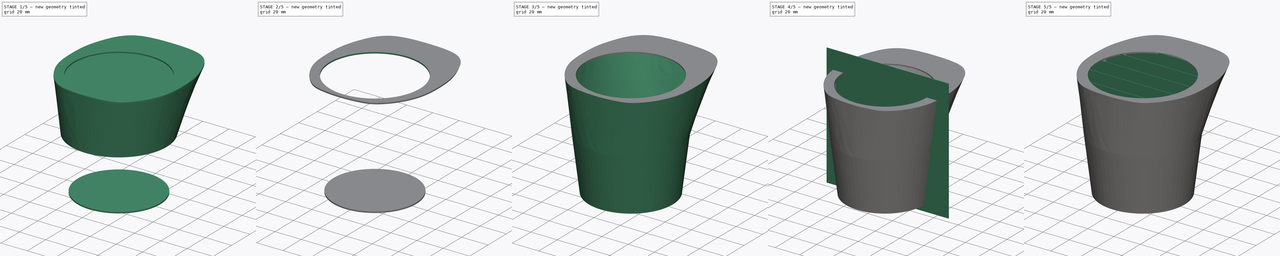
[diagram: build sequence overview — one tinted view per stage of 5, left to right]
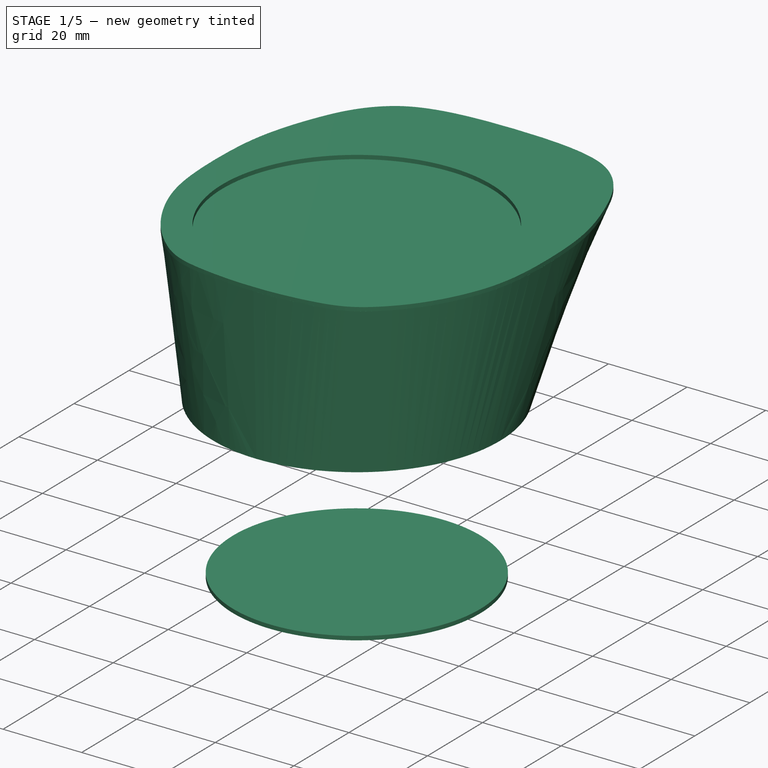
[diagram: stage 1 of 5 — iso view after this stage's code; geometry added in this stage tinted green]
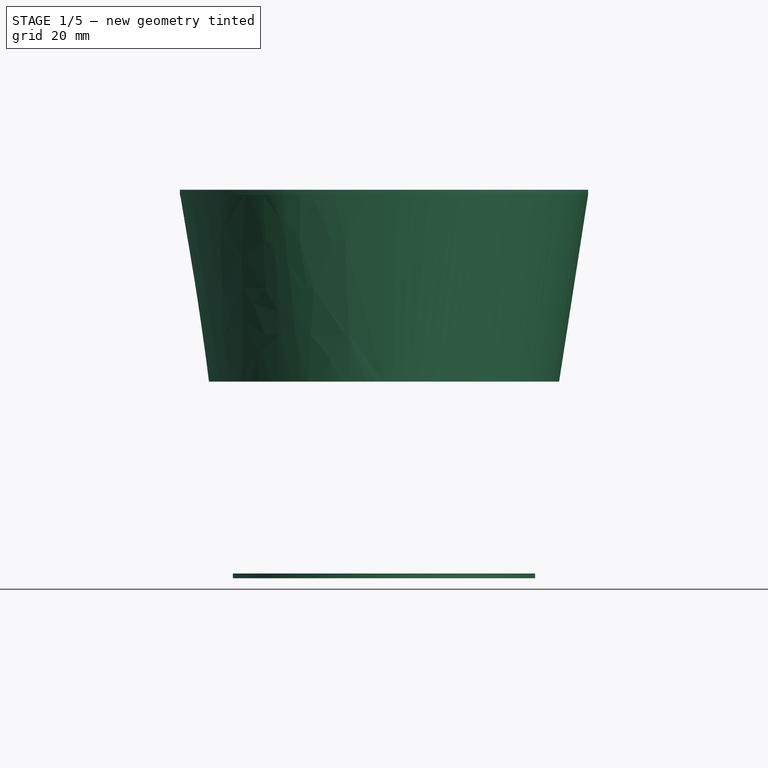
[diagram: stage 1 of 5 — front view after this stage's code; geometry added in this stage tinted green]
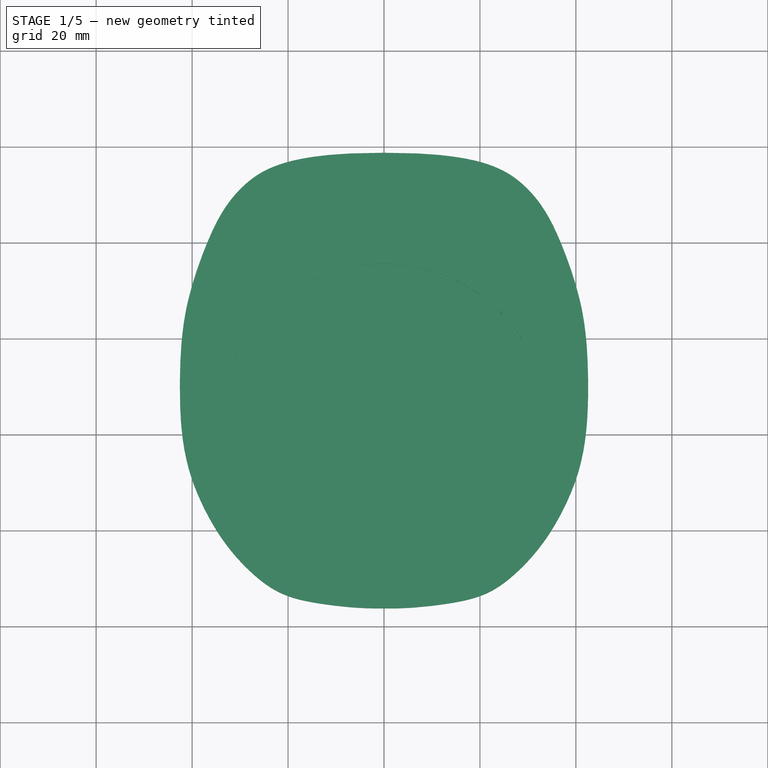
[diagram: stage 1 of 5 — top view after this stage's code; geometry added in this stage tinted green]
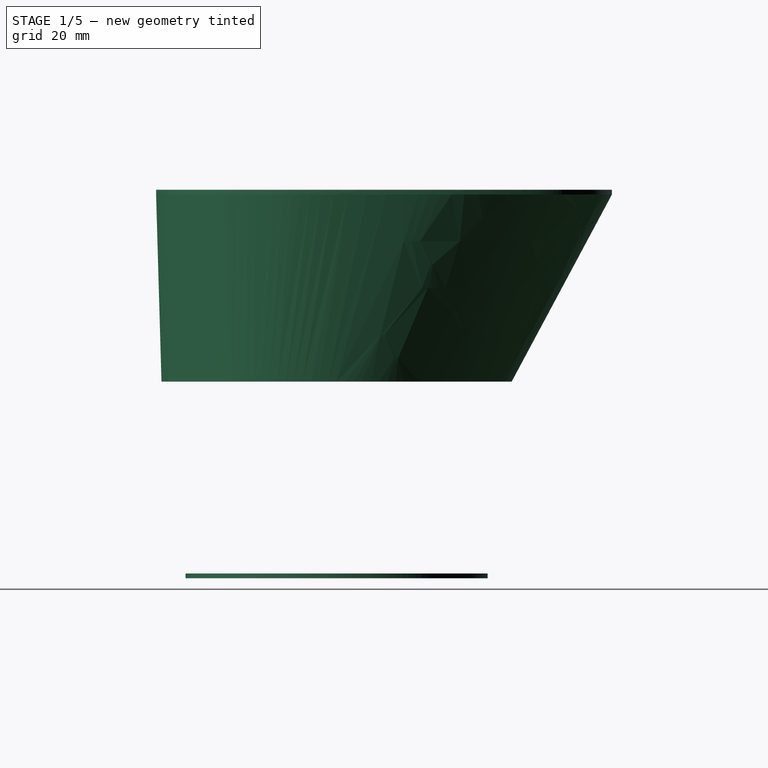
[diagram: stage 1 of 5 — right view after this stage's code; geometry added in this stage tinted green]
FCSTD DOCUMENT  (FreeCAD 0.21R33694 (Git))
Label: nodr
License: All rights reserved
LicenseURL: http://en.wikipedia.org/wiki/All_rights_reserved
objects: Sketcher::SketchObject×11, PartDesign::Body×6, Part::MultiFuse×5, PartDesign::AdditiveLoft×4, Image::ImagePlane×3, PartDesign::Thickness×2, Part::MultiCommon×2, PartDesign::Pad×2, Part::Box×1, Part::FeaturePython×1, PartDesign::Pocket×1
note: 43 computed .brp shape members not serialized (recipe doc carries the construction recipe); baked Part::Feature solids carry a one-line shape summary decoded from their .brp

FEATURE [PartDesign::Body] Body002
  Group = -> [Sketch006,Sketch007,AdditiveLoft002]
  Origin = -> Origin002
  Tip = -> AdditiveLoft002
FEATURE [Sketcher::SketchObject] Sketch008
  AttachmentOffset = pos=(0,0,41) rot=(0,0,1;0rad)
  FullyConstrained = true
  MapMode = 5
  Placement = pos=(0,0,41) rot=(0,0,1;0rad)
  Support = -> [XY_Plane003]
  sketch-geometry (1):
    g0: Circle CenterX=0 CenterY=0 CenterZ=0 NormalX=0 NormalY=0 NormalZ=1 AngleXU=0 Radius=36.5
  constraints (2):
    c: Coincident(g0,g-1)
    c: Diameter(g0) = 73
FEATURE [Sketcher::SketchObject] Sketch009
  AttachmentOffset = pos=(0,0,80) rot=(0,0,1;0rad)
  FullyConstrained = false
  MapMode = 5
  Placement = pos=(0,0,80) rot=(0,0,1;0rad)
  Support = -> [XY_Plane003]
  sketch-geometry (28):
    g0-g13: Circle x14 (B-spline internal-alignment scaffolding for g14; pole/knot coordinates omitted)
    g14: BSplineCurve PolesCount=14 KnotsCount=12 Degree=3 IsPeriodic=0
    g15-g26: GeomPoint x12 (B-spline internal-alignment scaffolding for g14; pole/knot coordinates omitted)
    g27: BSplineCurve PolesCount=14 KnotsCount=12 Degree=3 IsPeriodic=0
  constraints (6):
    c: Weight(g0) = 1
    c: PointOnObject(g14,g-2)
    c: Equal(g0, g1-g13) x13
    c: PointOnObject(g14,g-2)
    c: InternalAlignment(g0-g13 -> g14) x14
    c: InternalAlignment(g15-g26 -> g14) x12
FEATURE [PartDesign::AdditiveLoft] AdditiveLoft003
  Closed = false
  Profile = -> Sketch008
  Ruled = false
  Sections = -> [Sketch009]
FEATURE [Sketcher::SketchObject] Sketch010
  AttachmentOffset = pos=(0,0,80) rot=(0,0,1;0rad)
  FullyConstrained = false
  MapMode = 5
  Placement = pos=(0,0,80) rot=(0,0,1;0rad)
  Support = -> [XY_Plane004]
  sketch-geometry (28):
    g0-g13: Circle x14 (B-spline internal-alignment scaffolding for g14; pole/knot coordinates omitted)
    g14: BSplineCurve PolesCount=14 KnotsCount=12 Degree=3 IsPeriodic=0
    g15-g26: GeomPoint x12 (B-spline internal-alignment scaffolding for g14; pole/knot coordinates omitted)
    g27: BSplineCurve PolesCount=14 KnotsCount=12 Degree=3 IsPeriodic=0
  constraints (6):
    c: Weight(g0) = 1
    c: PointOnObject(g14,g-2)
    c: Equal(g0, g1-g13) x13
    c: PointOnObject(g14,g-2)
    c: InternalAlignment(g0-g13 -> g14) x14
    c: InternalAlignment(g15-g26 -> g14) x12
FEATURE [PartDesign::Pad] Pad
  Direction = (0,0,1)
  Length = 1
  Length2 = 10
  Profile = -> Sketch010
  ReferenceAxis = -> Sketch010 [N_Axis]
  Type = 0
FEATURE [Sketcher::SketchObject] Sketch011
  FullyConstrained = false
  MapMode = 5
  Placement = pos=(0,0,81) rot=(0,0,1;0rad)
  Support = -> [Pad]
  sketch-geometry (1):
    g0: Circle CenterX=0 CenterY=0 CenterZ=0 NormalX=0 NormalY=0 NormalZ=1 AngleXU=0 Radius=34.2551
  constraints (1):
    c: Coincident(g0,g-1)
FEATURE [PartDesign::Pocket] Pocket
  BaseFeature = -> Pad
  Direction = (0,0,-1)
  Length = 5
  Length2 = 5
  Profile = -> Sketch011
  ReferenceAxis = -> Sketch011 [N_Axis]
  Type = 0
FEATURE [Sketcher::SketchObject] Sketch012
  FullyConstrained = true
  MapMode = 5
  Support = -> [XY_Plane005]
  sketch-geometry (1):
    g0: Circle CenterX=0 CenterY=0 CenterZ=0 NormalX=0 NormalY=0 NormalZ=1 AngleXU=0 Radius=31.5
  constraints (2):
    c: Coincident(g0,g-1)
    c: Diameter(g0) = 63
FEATURE [PartDesign::Pad] Pad001
  Direction = (0,0,1)
  Length = 1
  Length2 = 10
  Profile = -> Sketch012
  ReferenceAxis = -> Sketch012 [N_Axis]
  Type = 0
  UseCustomVector = true
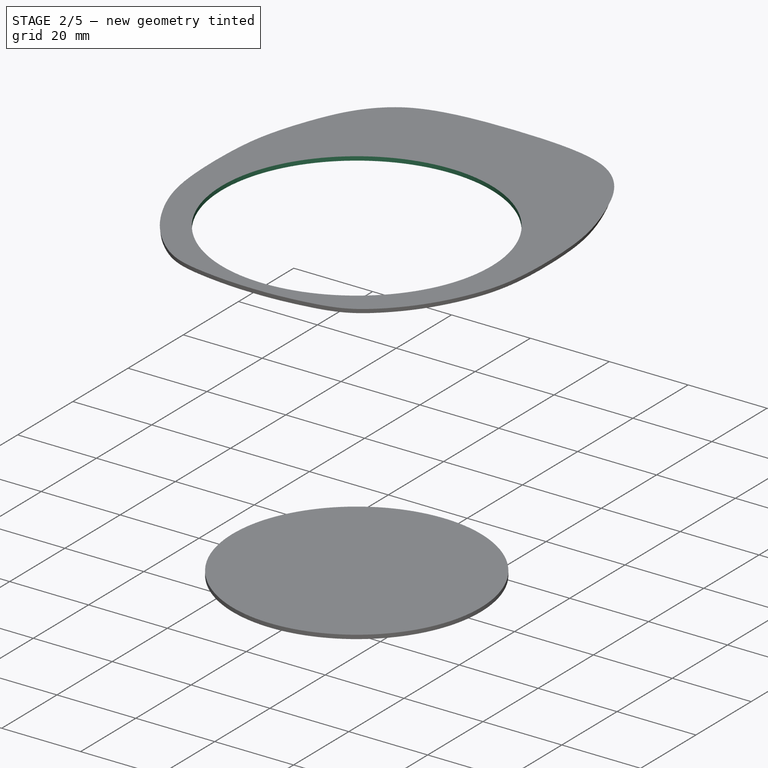
[diagram: stage 2 of 5 — iso view after this stage's code; geometry added in this stage tinted green]
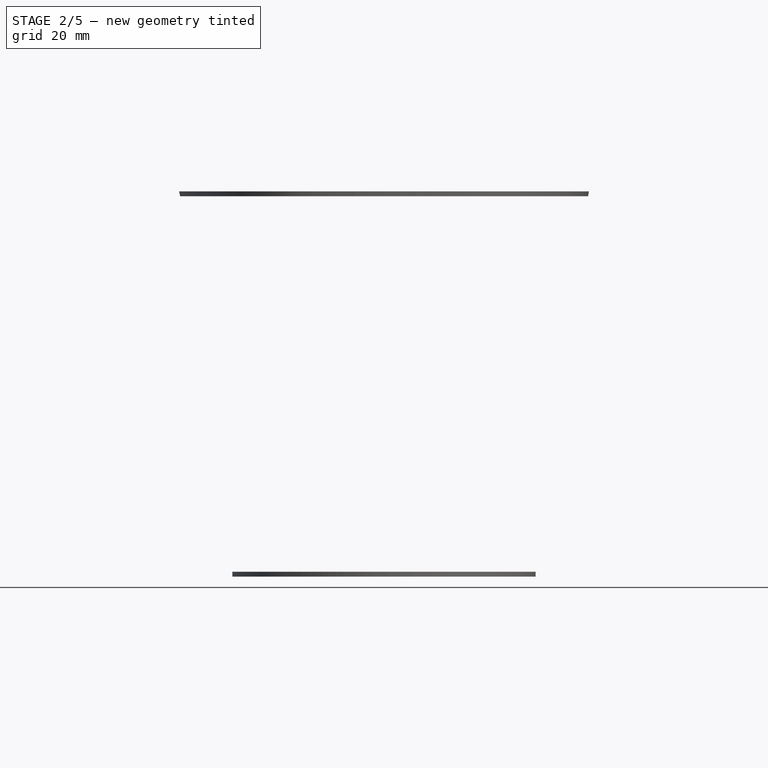
[diagram: stage 2 of 5 — front view after this stage's code; geometry added in this stage tinted green]
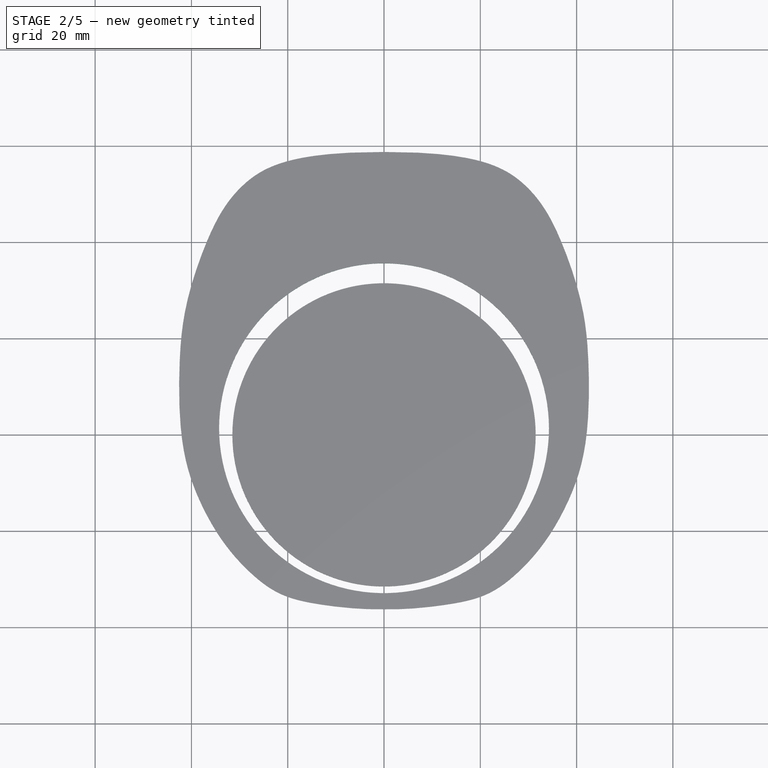
[diagram: stage 2 of 5 — top view after this stage's code; geometry added in this stage tinted green]
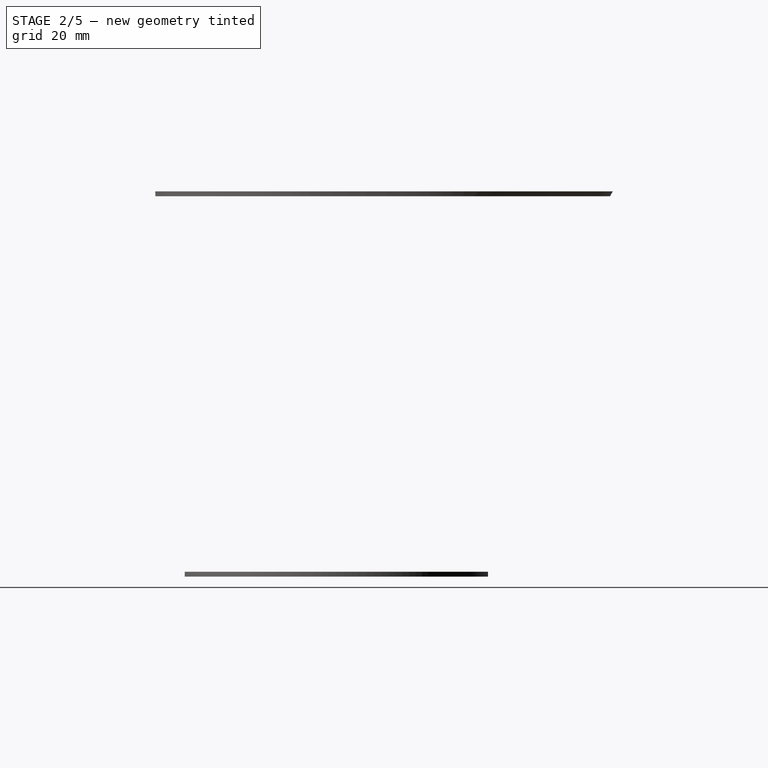
[diagram: stage 2 of 5 — right view after this stage's code; geometry added in this stage tinted green]
FEATURE [Sketcher::SketchObject] Sketch006
  FullyConstrained = true
  MapMode = 5
  Support = -> [XY_Plane002]
  sketch-geometry (1):
    g0: Circle CenterX=0 CenterY=0 CenterZ=0 NormalX=0 NormalY=0 NormalZ=1 AngleXU=0 Radius=31.5
  constraints (2):
    c: Coincident(g0,g-1)
    c: Diameter(g0) = 63
FEATURE [Sketcher::SketchObject] Sketch007
  AttachmentOffset = pos=(0,0,41) rot=(0,0,1;0rad)
  FullyConstrained = true
  MapMode = 5
  Placement = pos=(0,0,41) rot=(0,0,1;0rad)
  Support = -> [XY_Plane002]
  sketch-geometry (1):
    g0: Circle CenterX=0 CenterY=0 CenterZ=0 NormalX=0 NormalY=0 NormalZ=1 AngleXU=0 Radius=36.5
  constraints (2):
    c: Coincident(g0,g-1)
    c: Diameter(g0) = 73
FEATURE [PartDesign::AdditiveLoft] AdditiveLoft002
  Closed = false
  Profile = -> Sketch006
  Ruled = false
  Sections = -> [Sketch007]
FEATURE [Part::MultiFuse] Fusion001
  Shapes = -> [Body003,Body002]
FEATURE [PartDesign::Body] Body004
  Group = -> [Sketch010,Pad,Sketch011,Pocket]
  Origin = -> Origin004
  Placement = pos=(0,0,-1) rot=(0,0,1;0rad)
  Tip = -> Pocket
FEATURE [Part::MultiCommon] Common001
  Shapes = -> [Fusion001,Body004]
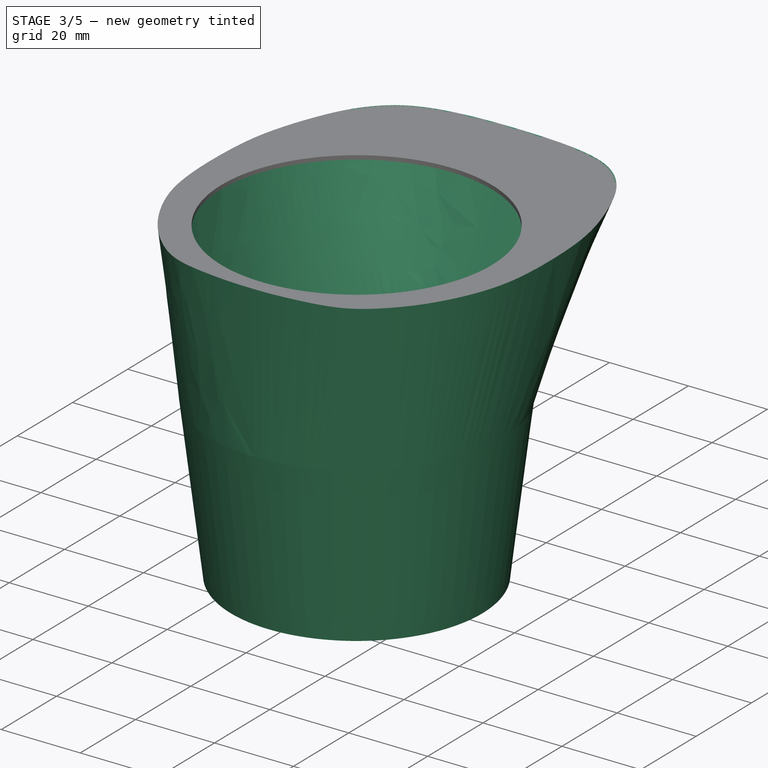
[diagram: stage 3 of 5 — iso view after this stage's code; geometry added in this stage tinted green]
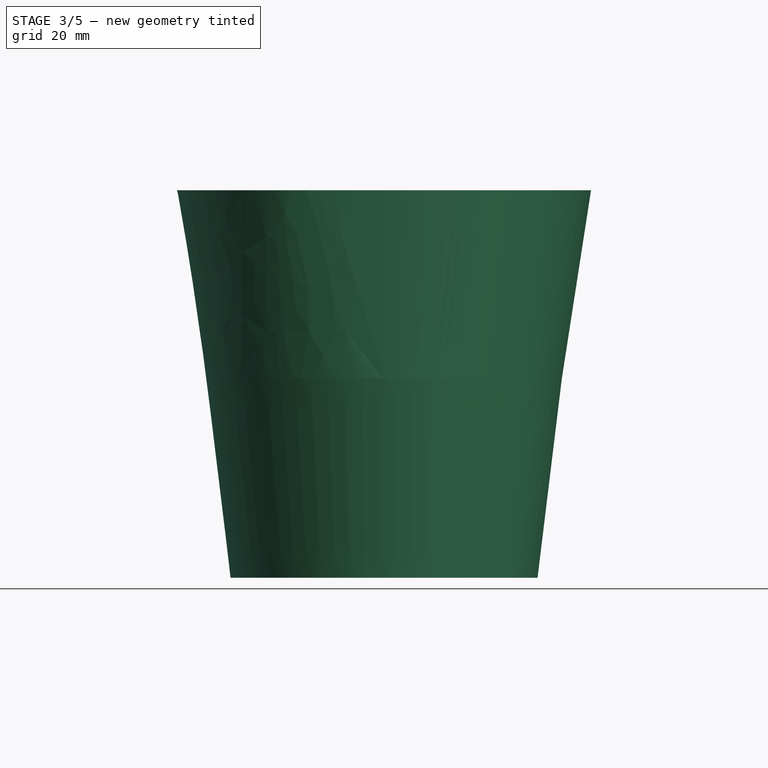
[diagram: stage 3 of 5 — front view after this stage's code; geometry added in this stage tinted green]
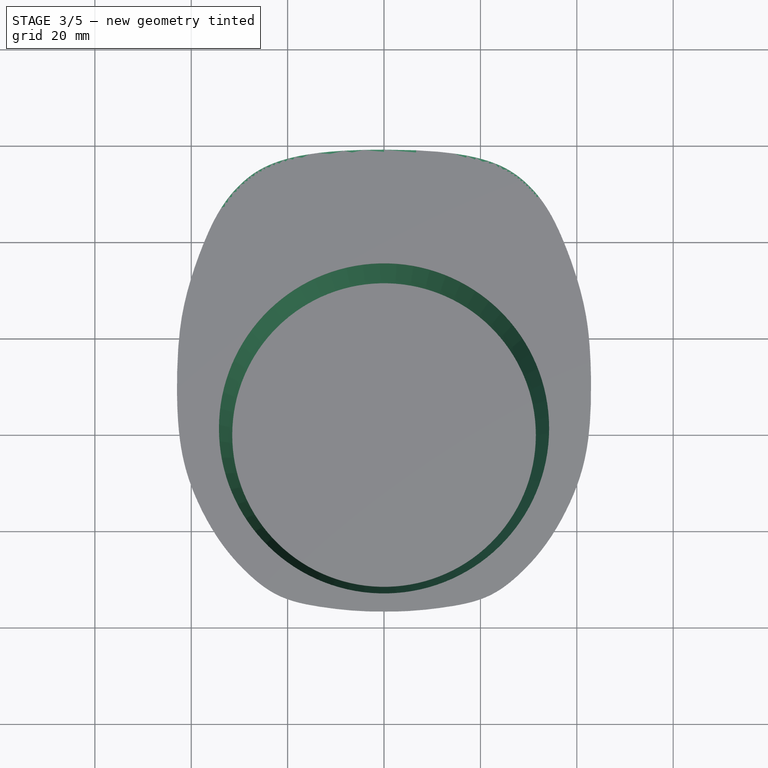
[diagram: stage 3 of 5 — top view after this stage's code; geometry added in this stage tinted green]
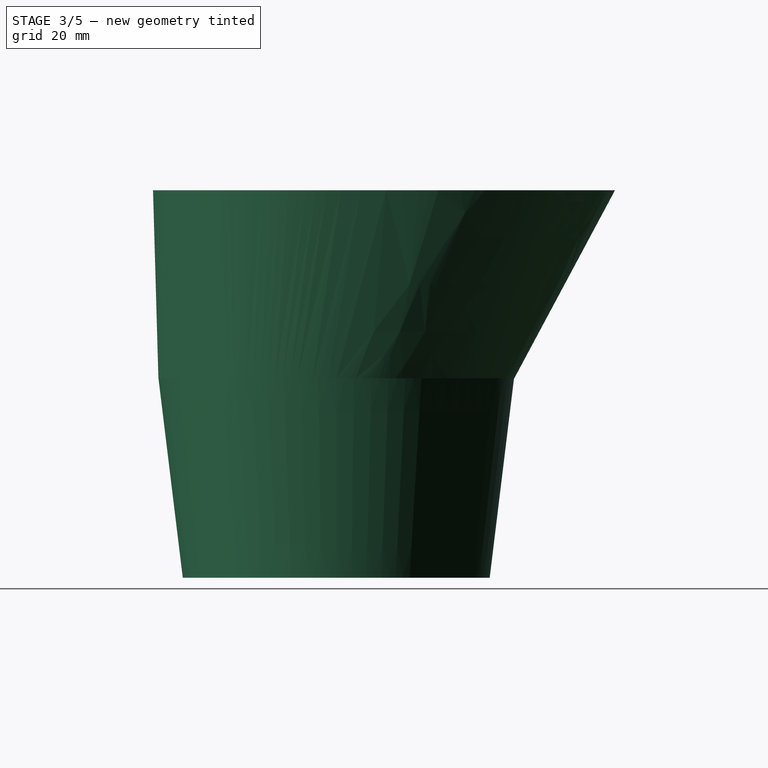
[diagram: stage 3 of 5 — right view after this stage's code; geometry added in this stage tinted green]
FEATURE [Image::ImagePlane] Screenshot_from_2023_12_17_16_05_26  label="Screenshot from 2023-12-17 16-05-26"
  Placement = pos=(5.1,-3.3,0) rot=(0,0,1;0rad)
  XSize = 129.819
  YSize = 122.654
FEATURE [Image::ImagePlane] Screenshot_from_2023_12_17_16_05_37  label="Screenshot from 2023-12-17 16-05-37"
  Placement = pos=(-0.7,-4.4,0) rot=(0,0,1;0rad)
  XSize = 136.152
  YSize = 133.925
FEATURE [Image::ImagePlane] Screenshot_from_2023_12_17_16_05_45  label="Screenshot from 2023-12-17 16-05-45"
  Placement = pos=(-16,1,-1) rot=(0,0,1;0rad)
  XSize = 162.316
  YSize = 159.661
FEATURE [Sketcher::SketchObject] Sketch
  FullyConstrained = true
  MapMode = 5
  Support = -> [XY_Plane]
  sketch-geometry (1):
    g0: Circle CenterX=0 CenterY=0 CenterZ=0 NormalX=0 NormalY=0 NormalZ=1 AngleXU=0 Radius=31.5
  constraints (2):
    c: Coincident(g0,g-1)
    c: Diameter(g0) = 63
FEATURE [Sketcher::SketchObject] Sketch001
  AttachmentOffset = pos=(0,0,41) rot=(0,0,1;0rad)
  FullyConstrained = true
  MapMode = 5
  Placement = pos=(0,0,41) rot=(0,0,1;0rad)
  Support = -> [XY_Plane]
  sketch-geometry (1):
    g0: Circle CenterX=0 CenterY=0 CenterZ=0 NormalX=0 NormalY=0 NormalZ=1 AngleXU=0 Radius=36.5
  constraints (2):
    c: Coincident(g0,g-1)
    c: Diameter(g0) = 73
FEATURE [Sketcher::SketchObject] Sketch004
  AttachmentOffset = pos=(0,0,41) rot=(0,0,1;0rad)
  FullyConstrained = true
  MapMode = 5
  Placement = pos=(0,0,41) rot=(0,0,1;0rad)
  Support = -> [XY_Plane001]
  sketch-geometry (1):
    g0: Circle CenterX=0 CenterY=0 CenterZ=0 NormalX=0 NormalY=0 NormalZ=1 AngleXU=0 Radius=36.5
  constraints (2):
    c: Coincident(g0,g-1)
    c: Diameter(g0) = 73
FEATURE [Sketcher::SketchObject] Sketch005
  AttachmentOffset = pos=(0,0,80) rot=(0,0,1;0rad)
  FullyConstrained = false
  MapMode = 5
  Placement = pos=(0,0,80) rot=(0,0,1;0rad)
  Support = -> [XY_Plane001]
  sketch-geometry (28):
    g0-g13: Circle x14 (B-spline internal-alignment scaffolding for g14; pole/knot coordinates omitted)
    g14: BSplineCurve PolesCount=14 KnotsCount=12 Degree=3 IsPeriodic=0
    g15-g26: GeomPoint x12 (B-spline internal-alignment scaffolding for g14; pole/knot coordinates omitted)
    g27: BSplineCurve PolesCount=14 KnotsCount=12 Degree=3 IsPeriodic=0
  constraints (6):
    c: Weight(g0) = 1
    c: PointOnObject(g14,g-2)
    c: Equal(g0, g1-g13) x13
    c: PointOnObject(g14,g-2)
    c: InternalAlignment(g0-g13 -> g14) x14
    c: InternalAlignment(g15-g26 -> g14) x12
FEATURE [PartDesign::AdditiveLoft] AdditiveLoft
  Closed = false
  Profile = -> Sketch
  Ruled = false
  Sections = -> [Sketch001]
FEATURE [PartDesign::AdditiveLoft] AdditiveLoft001
  Closed = false
  Profile = -> Sketch004
  Ruled = false
  Sections = -> [Sketch005]
FEATURE [PartDesign::Body] Body003
  Group = -> [Sketch008,Sketch009,AdditiveLoft003]
  Origin = -> Origin003
  Tip = -> AdditiveLoft003
FEATURE [PartDesign::Thickness] Thickness
  Base = -> AdditiveLoft001 [Face3,Face1]
  BaseFeature = -> AdditiveLoft001
  Intersection = false
  Join = 1
  Mode = 0
  SupportTransform = false
  Value = 0.4
FEATURE [PartDesign::Body] Body001
  Group = -> [Sketch004,Sketch005,AdditiveLoft001,Thickness]
  Origin = -> Origin001
  Tip = -> Thickness
FEATURE [PartDesign::Thickness] Thickness001
  Base = -> AdditiveLoft [Face3]
  BaseFeature = -> AdditiveLoft
  Intersection = false
  Join = 1
  Mode = 0
  SupportTransform = false
  Value = 0.4
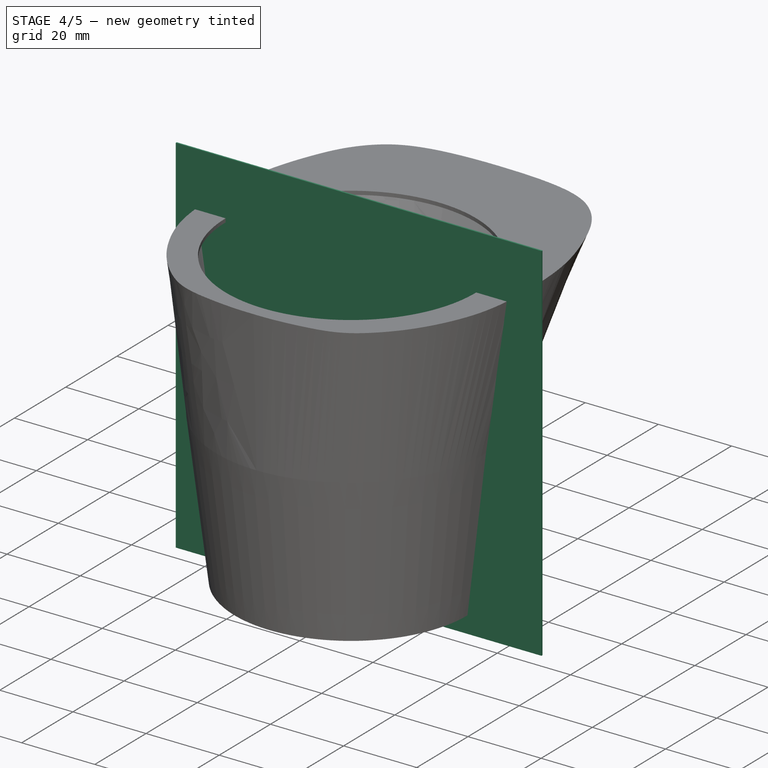
[diagram: stage 4 of 5 — iso view after this stage's code; geometry added in this stage tinted green]
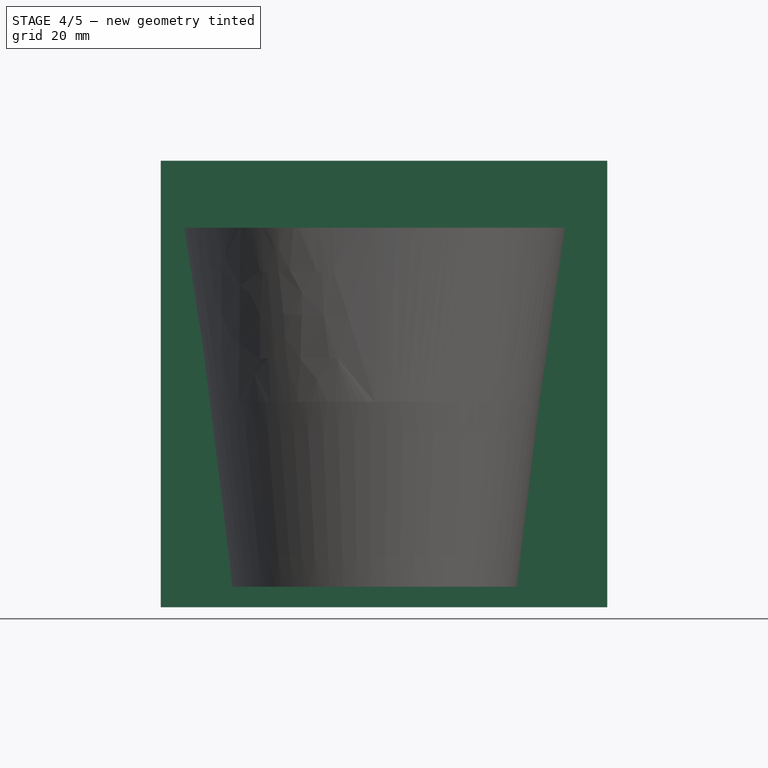
[diagram: stage 4 of 5 — front view after this stage's code; geometry added in this stage tinted green]
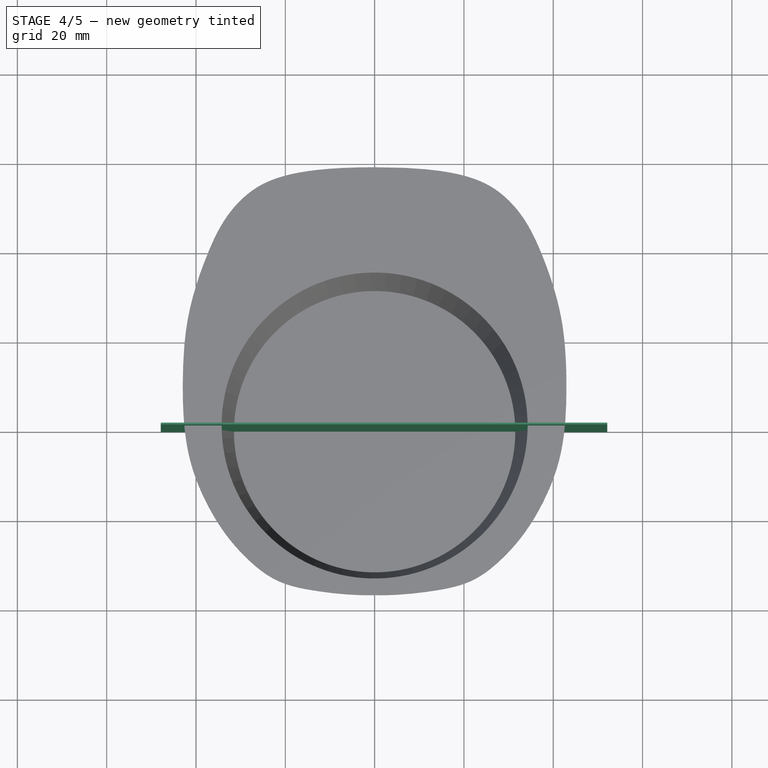
[diagram: stage 4 of 5 — top view after this stage's code; geometry added in this stage tinted green]
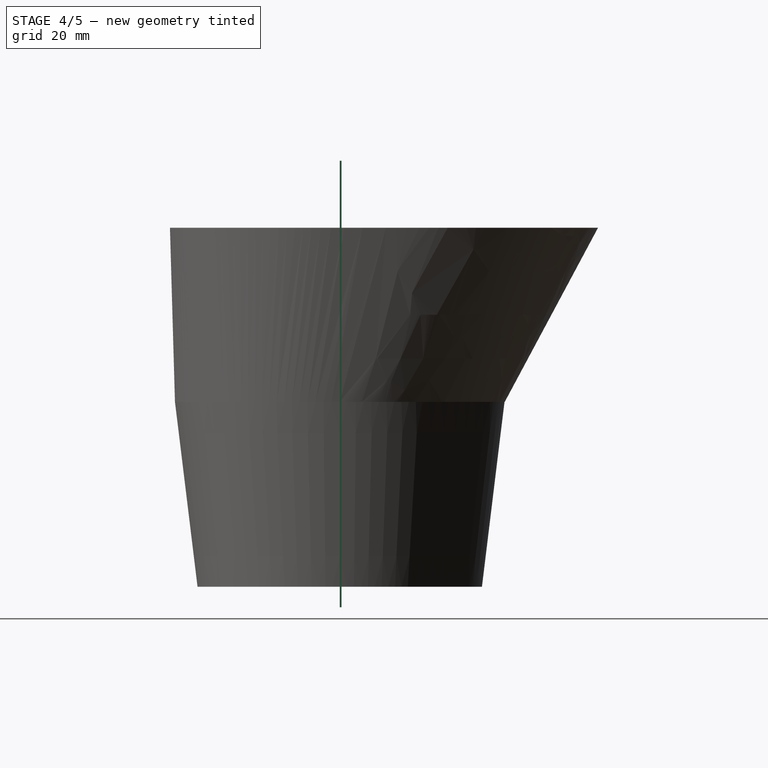
[diagram: stage 4 of 5 — right view after this stage's code; geometry added in this stage tinted green]
FEATURE [PartDesign::Body] Body
  Group = -> [Sketch,Sketch001,AdditiveLoft,Thickness001]
  Origin = -> Origin
  Tip = -> Thickness001
FEATURE [Part::MultiFuse] Fusion
  Shapes = -> [Body,Body001]
FEATURE [Part::Box] Box  label="Cube"
  AttacherType = Attacher::AttachEngine3D
  Height = 100
  Length = 100
  Placement = pos=(-47.9,0,-5) rot=(0,0,1;0rad)
  Width = 0.4
FEATURE [Part::MultiFuse] Fusion002
  Shapes = -> [Common001,Fusion]
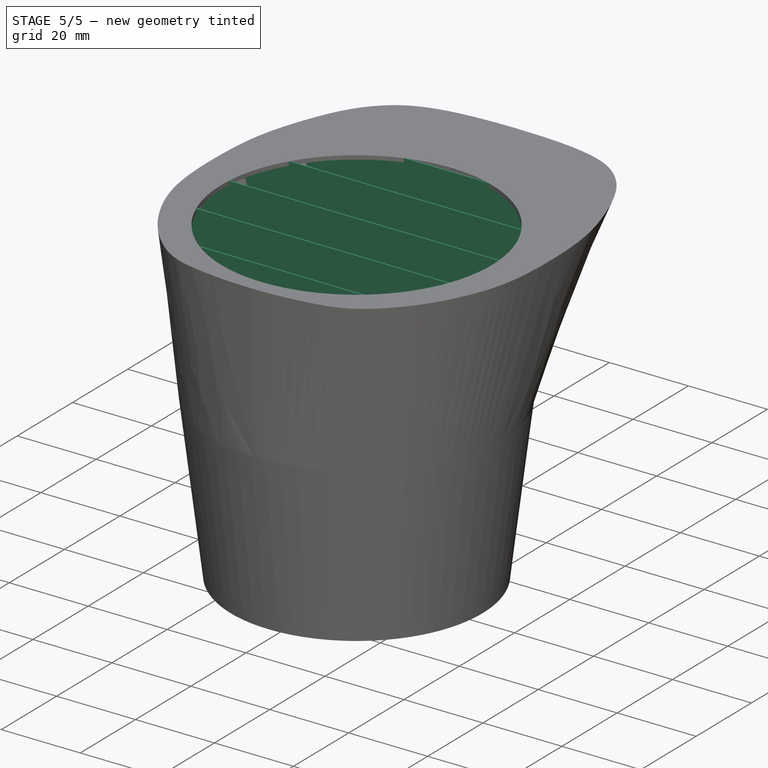
[diagram: stage 5 of 5 — iso view after this stage's code; geometry added in this stage tinted green]
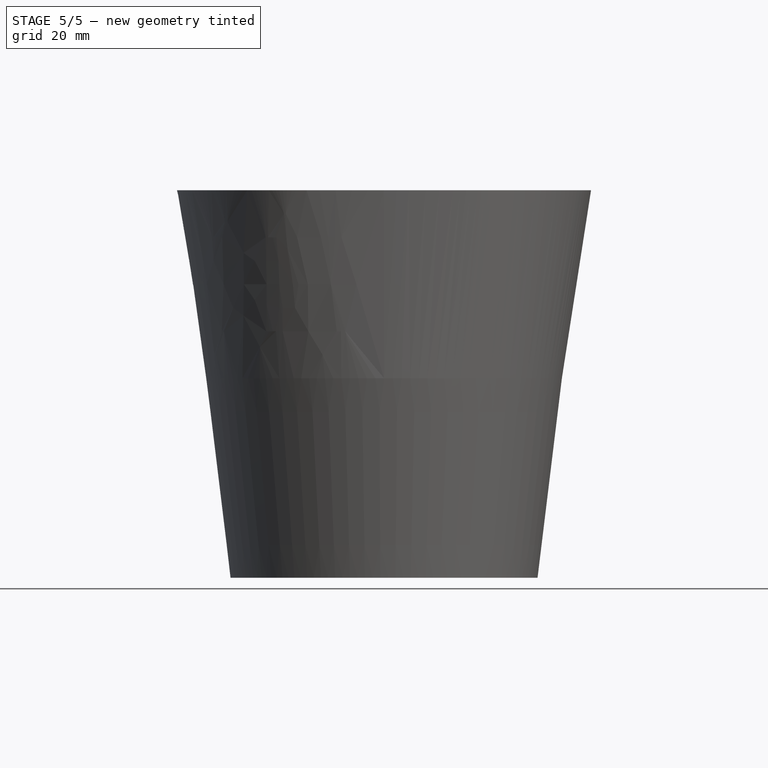
[diagram: stage 5 of 5 — front view after this stage's code; geometry added in this stage tinted green]
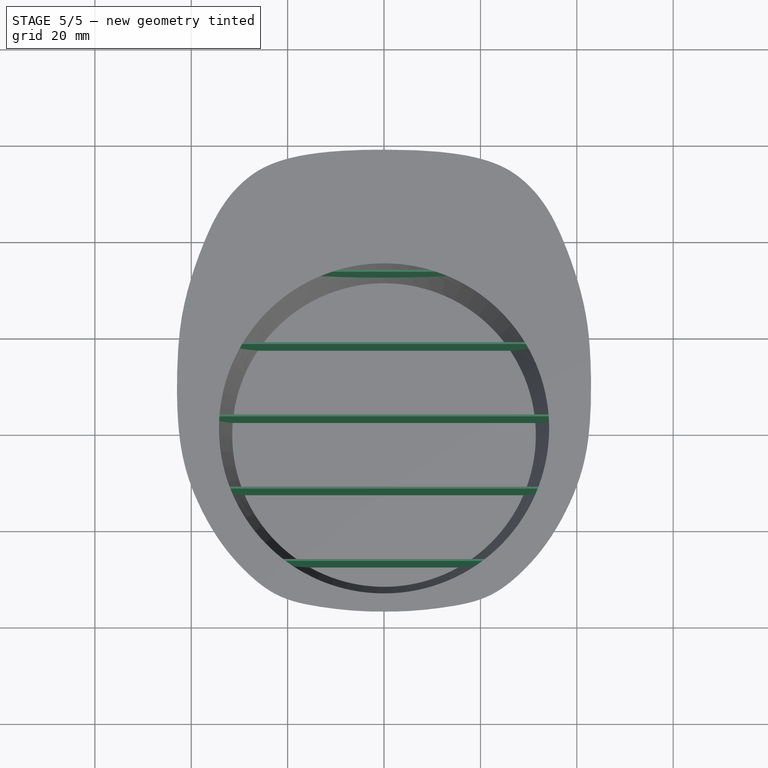
[diagram: stage 5 of 5 — top view after this stage's code; geometry added in this stage tinted green]
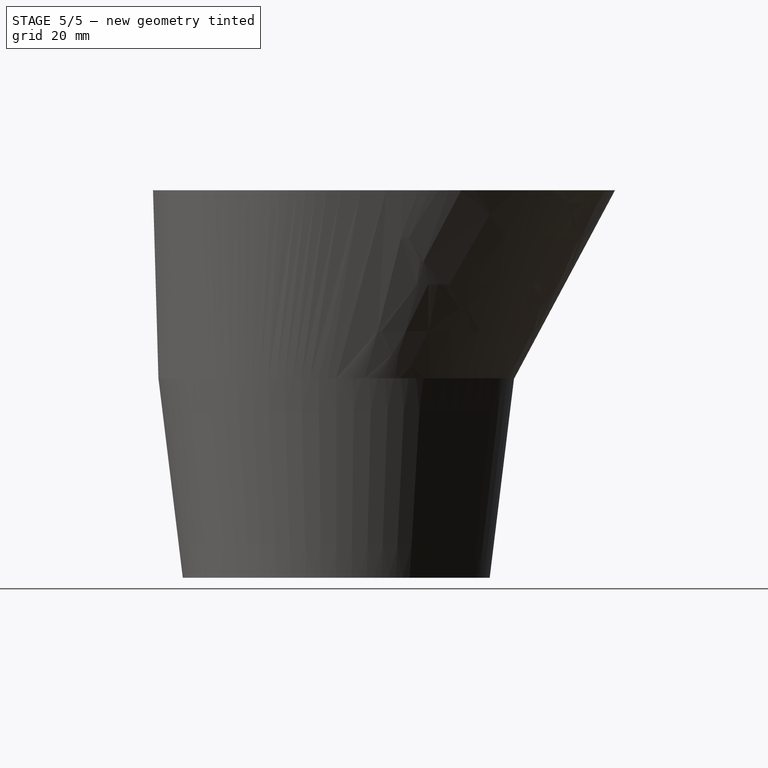
[diagram: stage 5 of 5 — right view after this stage's code; geometry added in this stage tinted green]
FEATURE [Part::FeaturePython] Array  # Draft array (typed FeaturePython)
  AlwaysSyncPlacement = false
  Angle = 360
  ArrayType = 0
  Axis = (0,0,1)
  Base = -> Box
  Center = (0,0,0)
  Count = 10
  ExpandArray = false
  Fuse = false
  IntervalAxis = (0,0,0)
  IntervalX = (100,0,0)
  IntervalY = (0,15,0)
  IntervalZ = (0,0,35)
  NumberCircles = 3
  NumberPolar = 5
  NumberX = 1
  NumberY = 10
  NumberZ = 1
  Placement = pos=(0,-57.5,0) rot=(0,0,1;0rad)
  PlacementList = 10 placements: arithmetic series from (-47.9,0,-5) step (0,15,0) to (-47.9,135,-5)
  RadialDistance = 50
  ScaleList = (10) [(1,1,1),(1,1,1),(1,1,1),(1,1,1),(1,1,1),(1,1,1),(1,1,1),(1,1,1),(1,1,1),(1,1,1)]
  Symmetry = 1
  TangentialDistance = 25
FEATURE [Part::MultiCommon] Common
  Shapes = -> [Fusion001,Array]
FEATURE [Part::MultiFuse] Fusion003
  Shapes = -> [Common,Fusion002]
FEATURE [PartDesign::Body] Body005
  Group = -> [Sketch012,Pad001]
  Origin = -> Origin005
  Tip = -> Pad001
FEATURE [Part::MultiFuse] Fusion004
  Shapes = -> [Fusion003,Body005]
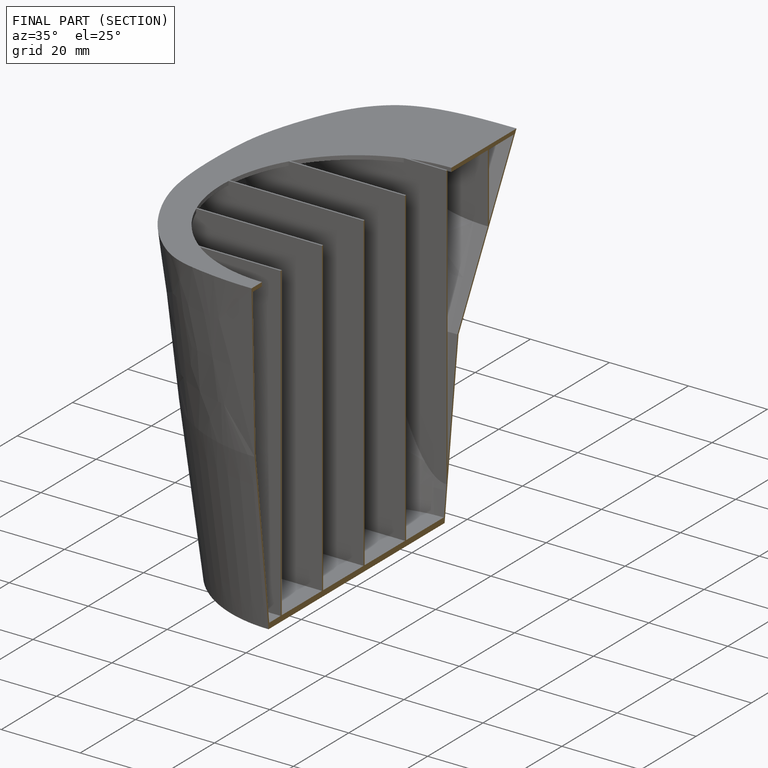
[diagram: finished part — half-section view (interior)]
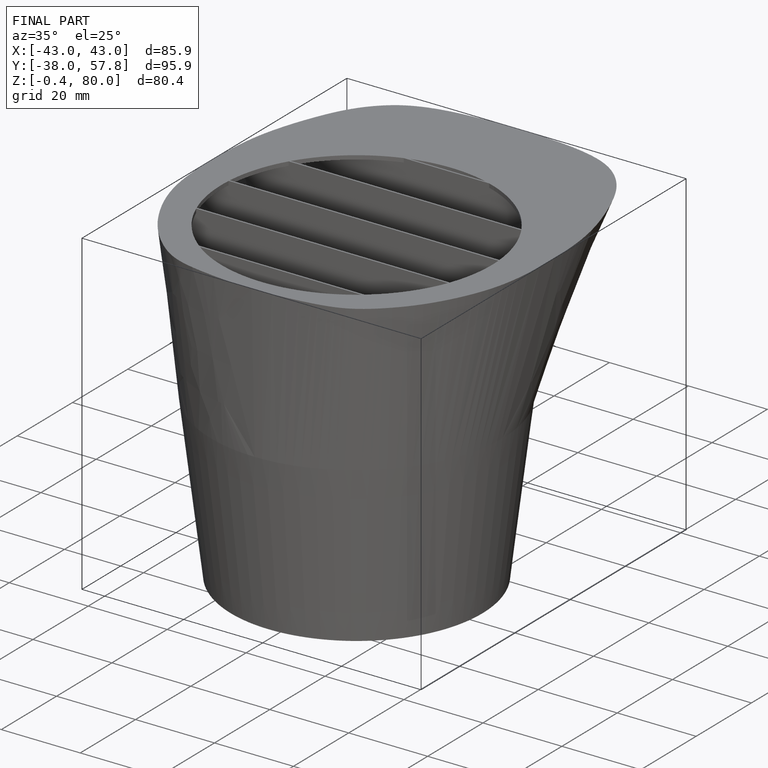
[diagram: finished part — iso view with bounding-box wireframe]
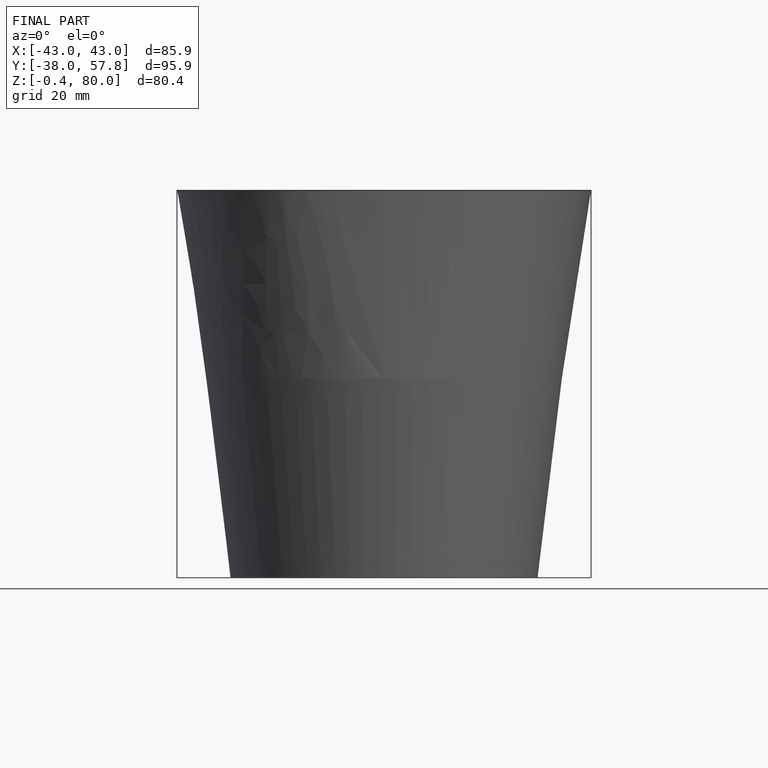
[diagram: finished part — front view with bounding-box wireframe]
